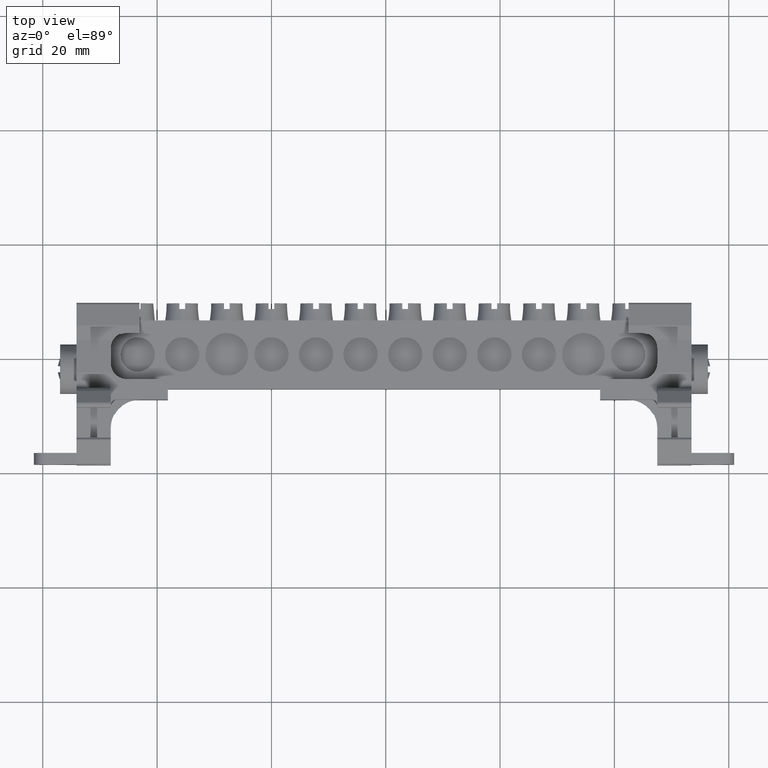
[diagram: clean part render]
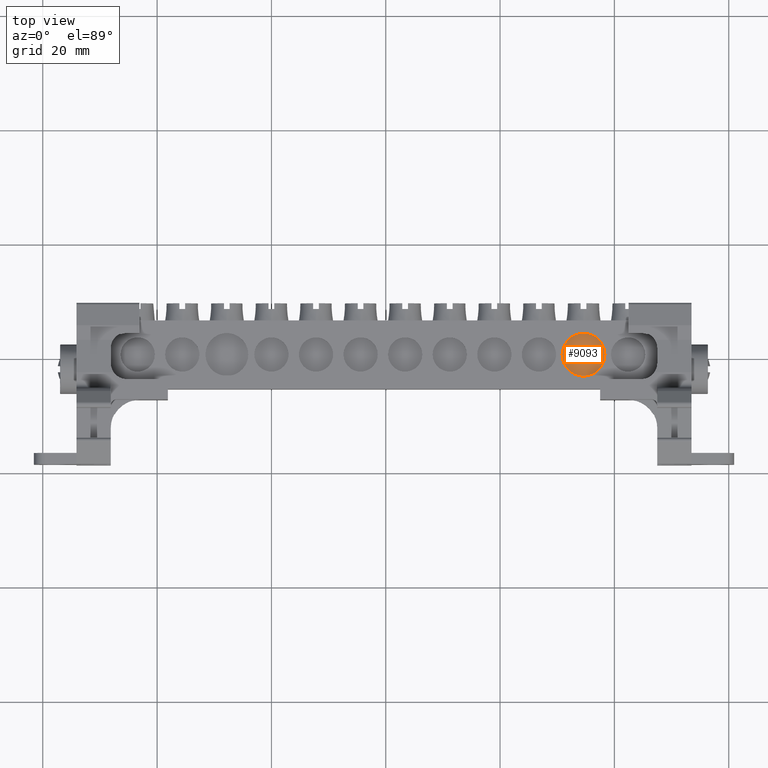
[diagram: same view with one face highlighted and labeled with its STEP entity id]
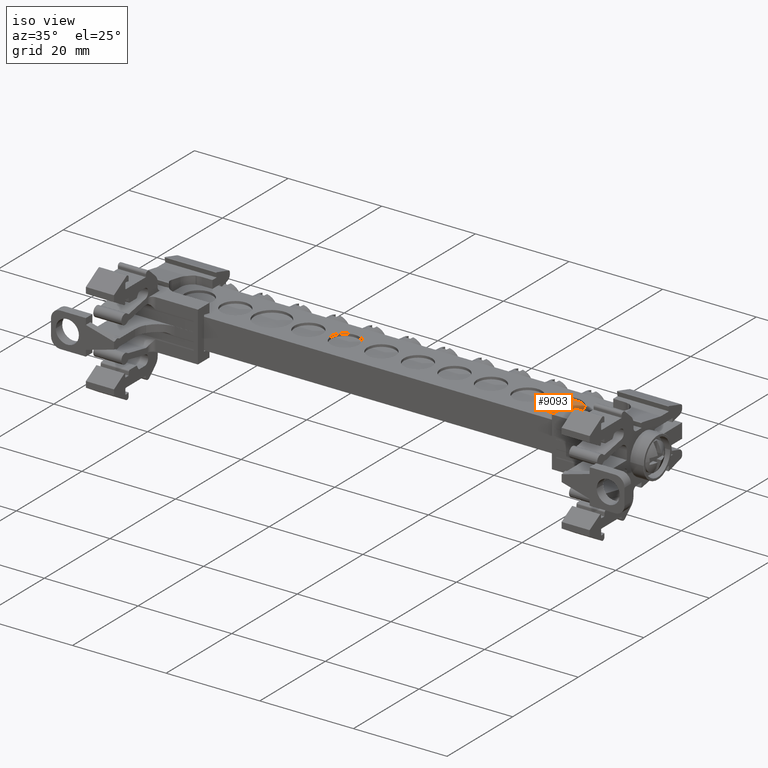
[diagram: same view with one face highlighted and labeled with its STEP entity id]
A machine part, top view. The second image highlights one B-rep face of the part: STEP entity #9093.
A second angle (iso view) of the same face is appended — the face is thin or edge-on in the first view.
In plain terms, the highlighted planar face has unit normal (0, 0, -1).
Its self-contained STEP definition (entity closure, byte-faithful):
#1770 = CARTESIAN_POINT ( 'NONE',  ( -49.15539649368640300, -39.46391012921964900, 98.75723811290720300 ) ) ;
#1929 = CARTESIAN_POINT ( 'NONE',  ( -41.65539649368639600, -39.46391012921964900, 98.75723811290720300 ) ) ;
#2769 = CARTESIAN_POINT ( 'NONE',  ( -45.40539649368639600, -39.46391012921964900, 98.75723811290720300 ) ) ;
#2775 = DIRECTION ( 'NONE',  ( 1.000000000000000000, 0.0000000000000000000, 0.0000000000000000000 ) ) ;
#2777 = DIRECTION ( 'NONE',  ( 0.0000000000000000000, 0.0000000000000000000, 1.000000000000000000 ) ) ;
#3490 = AXIS2_PLACEMENT_3D ( 'NONE', #24409, #24414, #24418 ) ;
#9093 = ADVANCED_FACE ( 'NONE', ( #24415 ), #24408, .F. ) ;
#10959 = VERTEX_POINT ( 'NONE', #1770 ) ;
#11033 = VERTEX_POINT ( 'NONE', #1929 ) ;
#11436 = EDGE_LOOP ( 'NONE', ( #18962, #18955 ) ) ;
#12964 = DIRECTION ( 'NONE',  ( 1.000000000000000000, 0.0000000000000000000, 0.0000000000000000000 ) ) ;
#12986 = CARTESIAN_POINT ( 'NONE',  ( -45.40539649368639600, -39.46391012921964900, 98.75723811290720300 ) ) ;
#13002 = DIRECTION ( 'NONE',  ( 0.0000000000000000000, 0.0000000000000000000, 1.000000000000000000 ) ) ;
#14757 = EDGE_CURVE ( 'NONE', #10959, #11033, #23030, .T. ) ;
#15903 = EDGE_CURVE ( 'NONE', #11033, #10959, #23613, .T. ) ;
#18955 = ORIENTED_EDGE ( 'NONE', *, *, #14757, .T. ) ;
#18962 = ORIENTED_EDGE ( 'NONE', *, *, #15903, .T. ) ;
#23030 = CIRCLE ( 'NONE', #23041, 3.750000000000003600 ) ;
#23041 = AXIS2_PLACEMENT_3D ( 'NONE', #2769, #2777, #2775 ) ;
#23613 = CIRCLE ( 'NONE', #23617, 3.750000000000003600 ) ;
#23617 = AXIS2_PLACEMENT_3D ( 'NONE', #12986, #13002, #12964 ) ;
#24408 = PLANE ( 'NONE',  #3490 ) ;
#24409 = CARTESIAN_POINT ( 'NONE',  ( -30.80539649368639800, -44.96391012921961300, 98.75723811290720300 ) ) ;
#24414 = DIRECTION ( 'NONE',  ( 0.0000000000000000000, 0.0000000000000000000, -1.000000000000000000 ) ) ;
#24415 = FACE_OUTER_BOUND ( 'NONE', #11436, .T. ) ;
#24418 = DIRECTION ( 'NONE',  ( -1.000000000000000000, 0.0000000000000000000, -0.0000000000000000000 ) ) ;